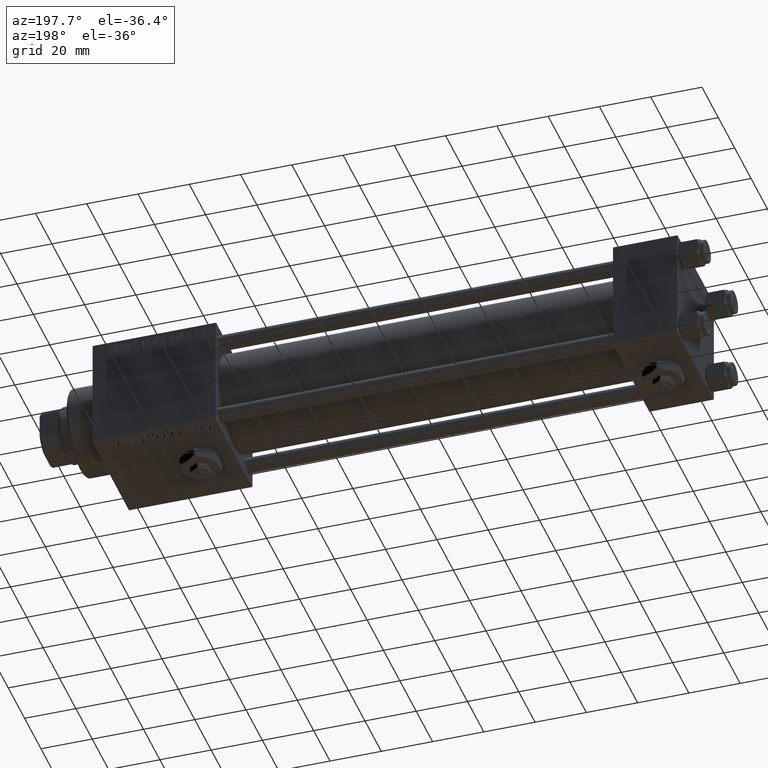
[diagram: clean part render]
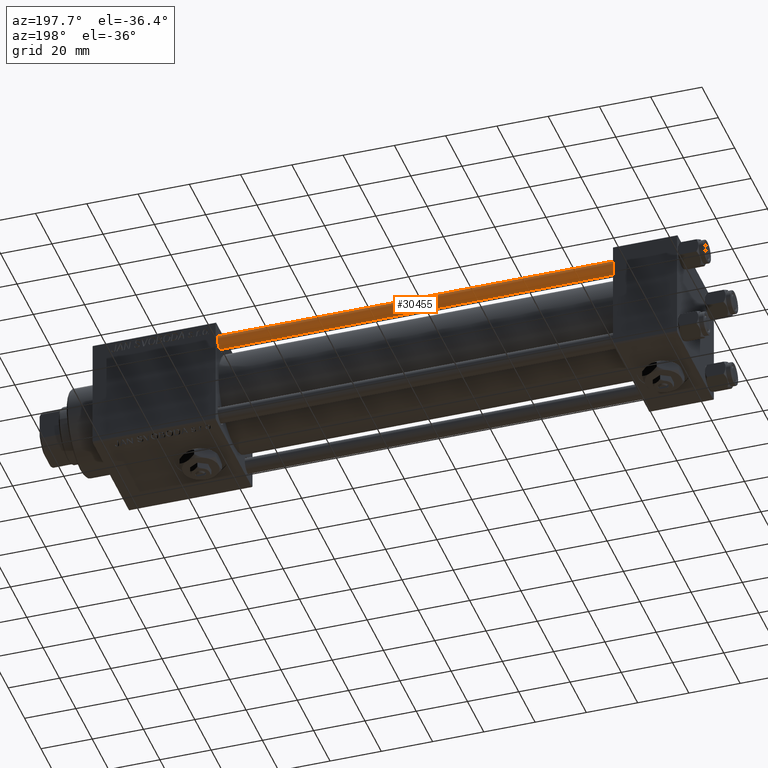
[diagram: same view with one face highlighted and labeled with its STEP entity id]
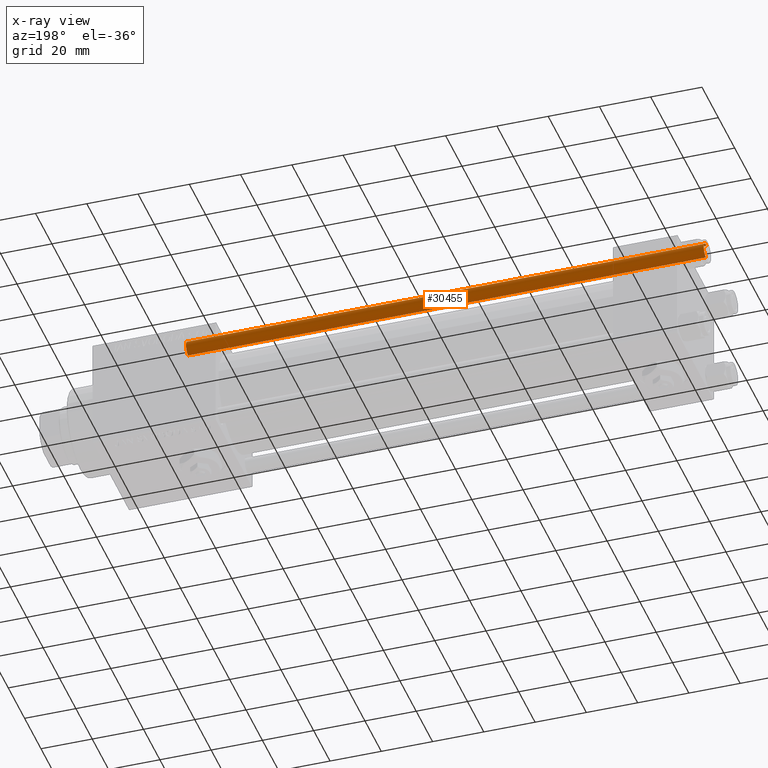
[diagram: x-ray of the same camera — body ghosted, the highlighted face saturated]
A machine part, auxiliary view. The second image highlights one B-rep face of the part: STEP entity #30455.
The next image is the same camera in x-ray: the body ghosted, the highlighted face saturated — about 0% of this face is hidden behind the body in this view.
In plain terms, the highlighted cylindrical surface (edge-blend (fillet) strip) has radius 3 mm, axis along (-1, 0, 0).
Its self-contained STEP definition (entity closure, byte-faithful):
#1346 = DIRECTION ( 'NONE',  ( -1.000000000000000000, 0.000000000000000000, 0.000000000000000000 ) ) ;
#2721 = DIRECTION ( 'NONE',  ( 0.000000000000000000, 0.000000000000000000, -1.000000000000000000 ) ) ;
#4942 = EDGE_CURVE ( 'NONE', #46895, #15601, #12723, .T. ) ;
#5252 = LINE ( 'NONE', #50201, #9674 ) ;
#5859 = AXIS2_PLACEMENT_3D ( 'NONE', #48452, #2721, #52514 ) ;
#7329 = EDGE_CURVE ( 'NONE', #30772, #46895, #43893, .T. ) ;
#8246 = ORIENTED_EDGE ( 'NONE', *, *, #31997, .F. ) ;
#9456 = CYLINDRICAL_SURFACE ( 'NONE', #12180, 3.000000000000000444 ) ;
#9674 = VECTOR ( 'NONE', #14167, 1000.000000000000000 ) ;
#10392 = CARTESIAN_POINT ( 'NONE',  ( -3.000000000000000444, 0.000000000000000000, 0.5000000000001114664 ) ) ;
#12180 = AXIS2_PLACEMENT_3D ( 'NONE', #41929, #13239, #1346 ) ;
#12723 = LINE ( 'NONE', #29229, #19562 ) ;
#13239 = DIRECTION ( 'NONE',  ( -0.000000000000000000, -0.000000000000000000, -1.000000000000000000 ) ) ;
#14167 = DIRECTION ( 'NONE',  ( -0.000000000000000000, -0.000000000000000000, -1.000000000000000000 ) ) ;
#15601 = VERTEX_POINT ( 'NONE', #27901 ) ;
#16039 = DIRECTION ( 'NONE',  ( 1.000000000000000000, 0.000000000000000000, 0.000000000000000000 ) ) ;
#19562 = VECTOR ( 'NONE', #37630, 1000.000000000000000 ) ;
#20015 = ORIENTED_EDGE ( 'NONE', *, *, #7329, .T. ) ;
#22625 = CARTESIAN_POINT ( 'NONE',  ( -3.000000000000000444, 0.000000000000000000, 202.5000000000000853 ) ) ;
#27901 = CARTESIAN_POINT ( 'NONE',  ( 3.000000000000000444, 3.673940397442059868E-16, 0.5000000000001114664 ) ) ;
#28677 = VERTEX_POINT ( 'NONE', #10392 ) ;
#29229 = CARTESIAN_POINT ( 'NONE',  ( 3.000000000000000444, 3.673940397442059868E-16, 203.0000000000000000 ) ) ;
#30455 = ADVANCED_FACE ( 'NONE', ( #46821 ), #9456, .T. ) ;
#30772 = VERTEX_POINT ( 'NONE', #22625 ) ;
#31997 = EDGE_CURVE ( 'NONE', #30772, #28677, #5252, .T. ) ;
#32549 = CARTESIAN_POINT ( 'NONE',  ( 0.000000000000000000, 0.000000000000000000, 0.5000000000001114664 ) ) ;
#34255 = EDGE_CURVE ( 'NONE', #15601, #28677, #49524, .T. ) ;
#37012 = CARTESIAN_POINT ( 'NONE',  ( 3.000000000000000444, 3.673940397442059868E-16, 202.5000000000000853 ) ) ;
#37630 = DIRECTION ( 'NONE',  ( -0.000000000000000000, -0.000000000000000000, -1.000000000000000000 ) ) ;
#40214 = EDGE_LOOP ( 'NONE', ( #20015, #45213, #53176, #8246 ) ) ;
#41929 = CARTESIAN_POINT ( 'NONE',  ( 0.000000000000000000, 0.000000000000000000, 203.0000000000000000 ) ) ;
#43893 = CIRCLE ( 'NONE', #5859, 3.000000000000000444 ) ;
#45213 = ORIENTED_EDGE ( 'NONE', *, *, #4942, .T. ) ;
#46821 = FACE_OUTER_BOUND ( 'NONE', #40214, .T. ) ;
#46895 = VERTEX_POINT ( 'NONE', #37012 ) ;
#46939 = AXIS2_PLACEMENT_3D ( 'NONE', #32549, #49094, #16039 ) ;
#48452 = CARTESIAN_POINT ( 'NONE',  ( 0.000000000000000000, 0.000000000000000000, 202.5000000000000853 ) ) ;
#49094 = DIRECTION ( 'NONE',  ( -0.000000000000000000, -0.000000000000000000, 1.000000000000000000 ) ) ;
#49524 = CIRCLE ( 'NONE', #46939, 3.000000000000000444 ) ;
#50201 = CARTESIAN_POINT ( 'NONE',  ( -3.000000000000000444, 0.000000000000000000, 203.0000000000000000 ) ) ;
#52514 = DIRECTION ( 'NONE',  ( 1.000000000000000000, 0.000000000000000000, 0.000000000000000000 ) ) ;
#53176 = ORIENTED_EDGE ( 'NONE', *, *, #34255, .T. ) ;